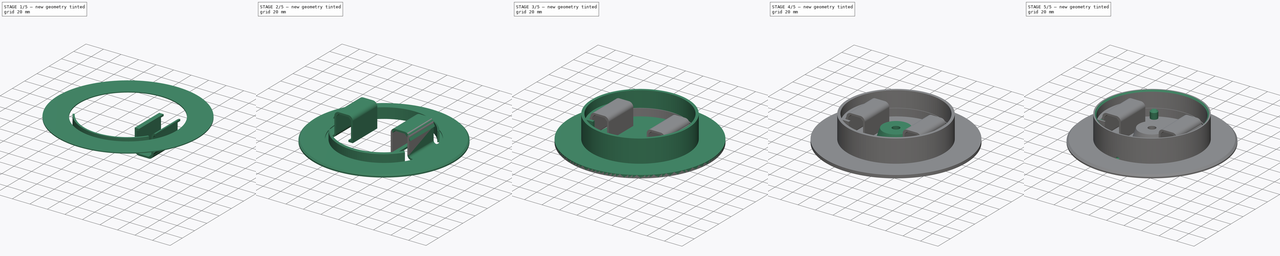
[diagram: build sequence overview — one tinted view per stage of 5, left to right]
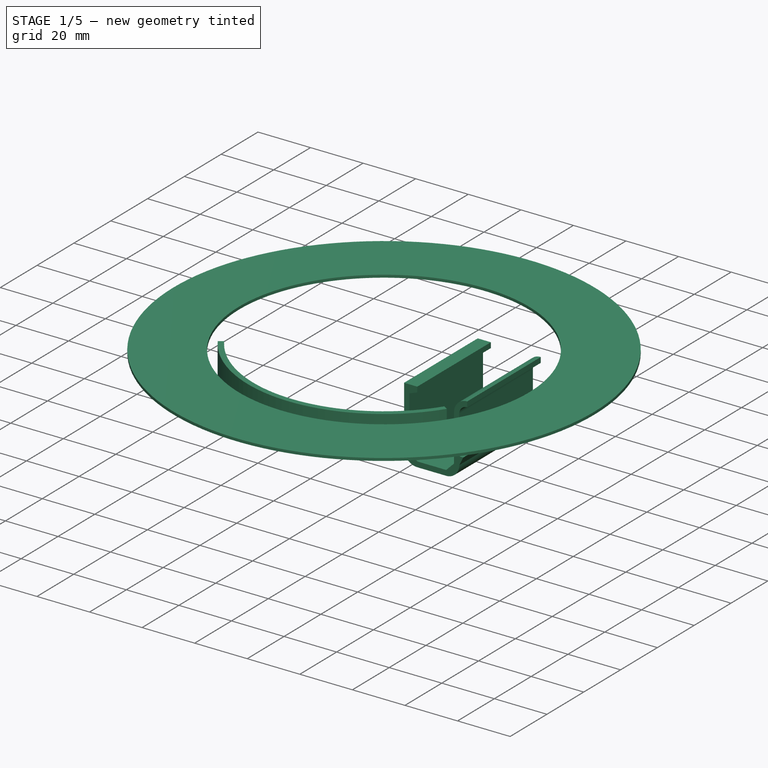
[diagram: stage 1 of 5 — iso view after this stage's code; geometry added in this stage tinted green]
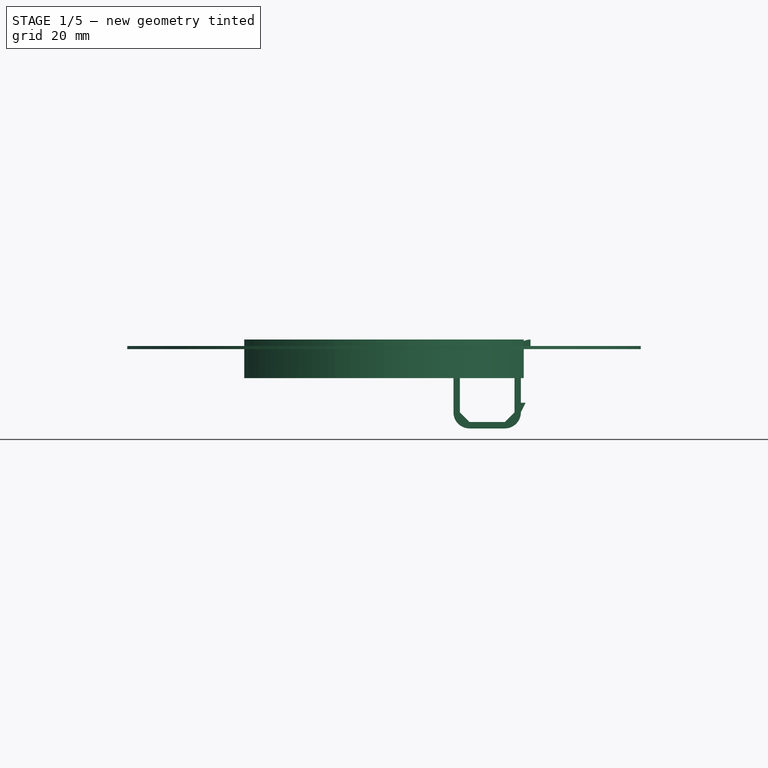
[diagram: stage 1 of 5 — front view after this stage's code; geometry added in this stage tinted green]
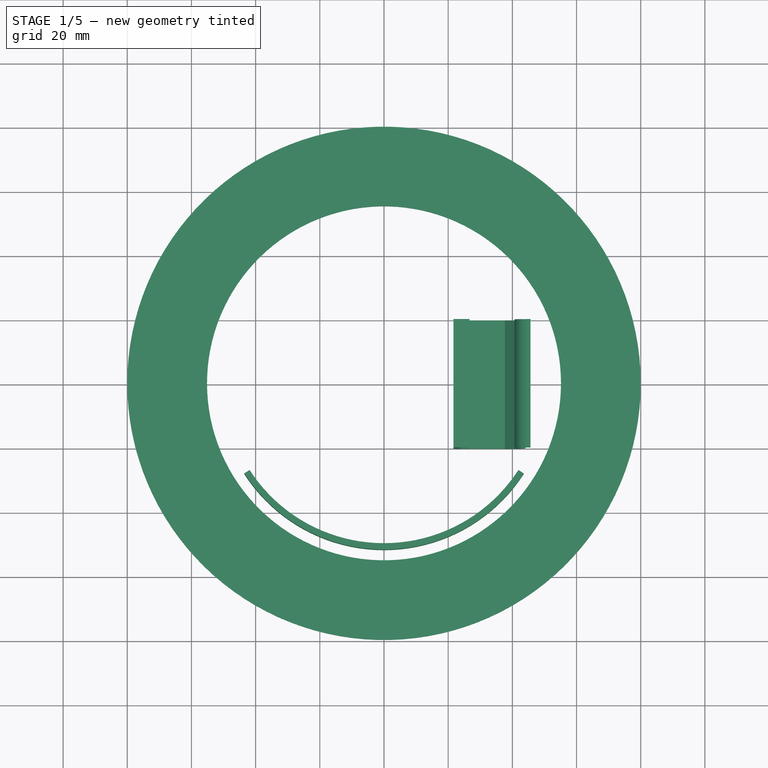
[diagram: stage 1 of 5 — top view after this stage's code; geometry added in this stage tinted green]
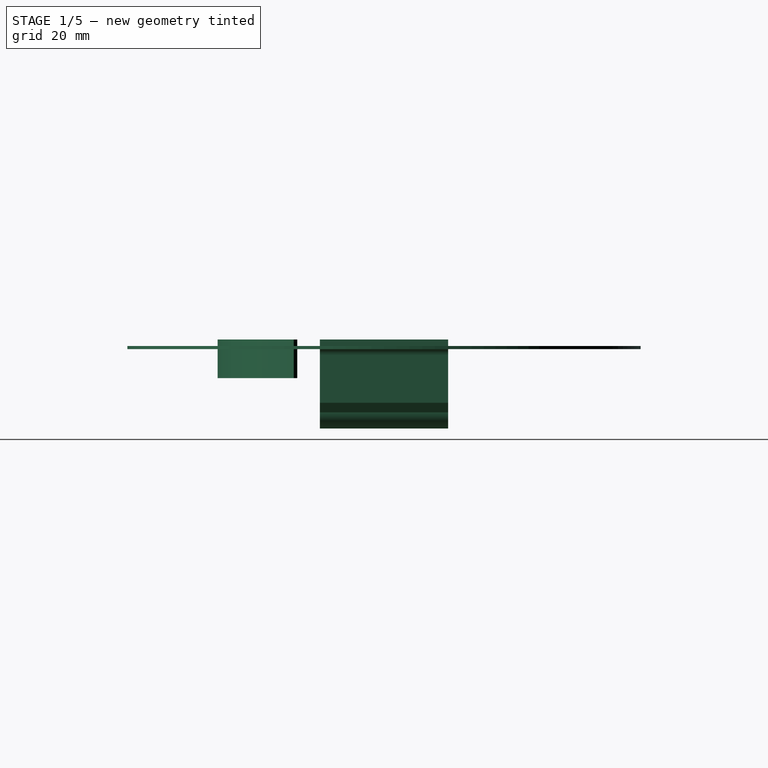
[diagram: stage 1 of 5 — right view after this stage's code; geometry added in this stage tinted green]
FCSTD DOCUMENT  (FreeCAD 0.19R)
Label: sample_spool_winder
License: All rights reserved
LicenseURL: http://en.wikipedia.org/wiki/All_rights_reserved
objects: Sketcher::SketchObject×10, Part::Extrusion×4, PartDesign::Body×3, PartDesign::AdditiveCylinder×3, PartDesign::SubtractiveCylinder×3, Part::Mirroring×2, PartDesign::Mirrored×2, PartDesign::PolarPattern×2, Part::Chamfer×2, Spreadsheet::Sheet×1, Part::MultiFuse×1, PartDesign::Pad×1, PartDesign::SubtractiveBox×1, PartDesign::AdditiveCone×1, Part::FeaturePython×1
note: 45 computed .brp shape members not serialized (recipe doc carries the construction recipe); baked Part::Feature solids carry a one-line shape summary decoded from their .brp

FEATURE [Sketcher::SketchObject] Sketch004  label="DrivePlateInnerBoreBase"
  MapMode = 5
  Support = -> [XY_Plane001]
  expr: Constraints[16] = Sketch002.Constraints[16]
  expr: Constraints[8] = Sketch002.Constraints[8]
  expr: Constraints[7] = Sketch002.Constraints[7]
  sketch-geometry (8):
    g0: ArcOfCircle [constr] CenterX=2e-16 CenterY=7.5 CenterZ=0 NormalX=0 NormalY=0 NormalZ=1 AngleXU=0 Radius=25 StartAngle=1e-16 EndAngle=3.14159
    g1: ArcOfCircle [constr] CenterX=-2e-16 CenterY=-7.5 CenterZ=0 NormalX=0 NormalY=0 NormalZ=1 AngleXU=0 Radius=25 StartAngle=3.14159 EndAngle=6.28319
    g2: LineSegment [constr] StartX=-25 StartY=7.5 StartZ=0 EndX=-25 EndY=-7.5 EndZ=0
    g3: LineSegment [constr] StartX=25 StartY=7.5 StartZ=0 EndX=25 EndY=-7.5 EndZ=0
    g4: ArcOfCircle CenterX=-2e-16 CenterY=7.5 CenterZ=0 NormalX=0 NormalY=0 NormalZ=1 AngleXU=0 Radius=28.5 StartAngle=1e-16 EndAngle=3.14159
    g5: ArcOfCircle CenterX=2e-16 CenterY=-7.5 CenterZ=0 NormalX=0 NormalY=0 NormalZ=1 AngleXU=0 Radius=28.5 StartAngle=3.14159 EndAngle=6.28319
    g6: LineSegment StartX=-28.5 StartY=7.5 StartZ=0 EndX=-28.5 EndY=-7.5 EndZ=0
    g7: LineSegment StartX=28.5 StartY=7.5 StartZ=0 EndX=28.5 EndY=-7.5 EndZ=0
  constraints (18):
    c: Tangent(g0,g3) = 1.5708
    c: Tangent(g0,g2) = -1.5708
    c: Tangent(g2,g1) = -1.5708
    c: Tangent(g3,g1) = 1.5708
    c: Vertical(g2)
    c: Equal(g0,g1)
    c: Symmetric(g1,g0,g-1)
    c: DistanceX(g0,g0) = 50
    c: DistanceY(g-1,g0) = 7.5
    c: Tangent(g4,g7) = 1.5708
    c: Tangent(g4,g6) = -1.5708
    c: Tangent(g6,g5) = -1.5708
    c: Tangent(g7,g5) = 1.5708
    c: Vertical(g6)
    c: Equal(g4,g5)
    c: Symmetric(g5,g4,g-1)
    c: DistanceX(g0,g4) = 3.5
    c: Horizontal(g4,g0)
FEATURE [Sketcher::SketchObject] Sketch005  label="clipsi"
  MapMode = 5
  Placement = pos=(0,0,0) rot=(1,0,0;1.5708rad)
  Support = -> [XZ_Plane002]
  expr: Constraints[41] = <<par>>.ThDrvPlate + <<par>>.ThFrPlate + <<par>>.WiWind
  expr: Constraints[44] = <<par>>.ThDrvPlate + <<par>>.Tol2
  expr: Constraints[35] = 20 + 1.5 + <<par>>.Tol1
  sketch-geometry (18):
    g0: LineSegment StartX=-37.65 StartY=3.8 StartZ=0 EndX=-26.65 EndY=3.8 EndZ=0
    g1: ArcOfCircle CenterX=-26.65 CenterY=8.8 CenterZ=0 NormalX=0 NormalY=0 NormalZ=1 AngleXU=0 Radius=5 StartAngle=4.71239 EndAngle=6.28319
    g2: LineSegment StartX=-21.65 StartY=8.8 StartZ=0 EndX=-21.65 EndY=31.5 EndZ=0
    g3: LineSegment StartX=-23.65 StartY=28.4081 StartZ=0 EndX=-23.65 EndY=8.8 EndZ=0
    g4: LineSegment StartX=-37.65 StartY=5.8 StartZ=0 EndX=-26.65 EndY=5.8 EndZ=0
    g5: LineSegment StartX=-26.65 StartY=31.5 StartZ=0 EndX=-21.65 EndY=31.5 EndZ=0
    g6: LineSegment StartX=-23.65 StartY=8.8 StartZ=0 EndX=-26.65 EndY=5.8 EndZ=0
    g7: LineSegment StartX=-37.65 StartY=5.8 StartZ=0 EndX=-40.65 EndY=8.8 EndZ=0
    g8: LineSegment StartX=-40.65 StartY=8.8 StartZ=0 EndX=-40.65 EndY=26.5 EndZ=0
    g9: LineSegment StartX=-44.15 StartY=11.8 StartZ=0 EndX=-42.65 EndY=11.8 EndZ=0
    g10: LineSegment StartX=-42.65 StartY=11.8 StartZ=0 EndX=-42.65 EndY=26.5 EndZ=0
    g11: ArcOfCircle CenterX=-37.65 CenterY=8.8 CenterZ=0 NormalX=0 NormalY=0 NormalZ=1 AngleXU=0 Radius=5 StartAngle=3.14159 EndAngle=4.71239
    g12: LineSegment StartX=-44.15 StartY=11.8 StartZ=0 EndX=-42.65 EndY=8.8 EndZ=0
    g13: ArcOfCircle CenterX=-45.65 CenterY=26.5 CenterZ=0 NormalX=0 NormalY=0 NormalZ=1 AngleXU=0 Radius=5 StartAngle=0 EndAngle=1.5708
    g14: ArcOfCircle CenterX=-45.65 CenterY=26.5 CenterZ=0 NormalX=0 NormalY=0 NormalZ=1 AngleXU=0 Radius=3 StartAngle=1e-16 EndAngle=1.5708
    g15: LineSegment StartX=-45.65 StartY=29.5 StartZ=0 EndX=-45.65 EndY=31.5 EndZ=0
    g16: LineSegment StartX=-26.65 StartY=31.5 StartZ=0 EndX=-26.65 EndY=29.5 EndZ=0
    g17: LineSegment StartX=-26.65 StartY=29.5 StartZ=0 EndX=-23.65 EndY=28.4081 EndZ=0
  constraints (57):
    c: Horizontal(g0)
    c: Coincident(g1,g0)
    c: Vertical(g0,g1)
    c: Horizontal(g1,g1)
    c: Radius(g1) = 5
    c: Coincident(g2,g1)
    c: Vertical(g2)
    c: Vertical(g3)
    c: Horizontal(g4)
    c: Horizontal(g3,g1)
    c: Vertical(g4,g0)
    c: DistanceX(g3,g1) = 2
    c: Coincident(g5,g2)
    c: Horizontal(g5)
    c: Coincident(g6,g3)
    c: Coincident(g6,g4)
    c: DistanceY(g0,g4) = 2
    c: Coincident(g7,g4)
    c: Coincident(g8,g7)
    c: Vertical(g8)
    c: Horizontal(g9)
    c: Coincident(g10,g9)
    c: Vertical(g10)
    c: DistanceX(g9,g9) = 1.5
    c: Coincident(g11,g0)
    c: Vertical(g4,g0)
    c: Horizontal(g7,g11)
    c: Horizontal(g11,g11)
    c: Vertical(g4,g11)
    c: Vertical(g9,g11)
    c: Coincident(g12,g9)
    c: Coincident(g11,g12)
    c: DistanceX(g9,g7) = 2
    c: DistanceY(g7,g9) = 3
    c: Equal(g11,g1)
    c: DistanceX(g2,g-1) = 21.65
    c: Coincident(g13,g8)
    c: Equal(g13,g1)
    c: Vertical(g13,g13)
    c: Horizontal(g13,g13)
    c: Horizontal(g10,g8)
    c: DistanceY(g-1,g2) = 31.5
    c: Coincident(g14,g10)
    c: Vertical(g14,g14)
    c: DistanceY(g-1,g0) = 3.8
    c: Coincident(g13,g14)
    c: Coincident(g15,g13)
    c: Coincident(g15,g14)
    c: DistanceX(g14,g-1) = 45.65
    c: Horizontal(g13,g5)
    c: Coincident(g5,g16)
    c: Vertical(g16)
    c: Coincident(g16,g17)
    c: Coincident(g17,g3)
    c: DistanceY(g16,g5) = 2
    c: Angle(g17) = -0.349066
    c: DistanceX(g5,g5) = 5
FEATURE [Part::Extrusion] Extrude
  Base = -> Sketch005
  Dir = (0,-1,-2e-16)
  DirMode = 2
  FaceMakerClass = Part::FaceMakerBullseye
  LengthFwd = 40
  LengthRev = 0
  Solid = true
  Symmetric = true
FEATURE [Sketcher::SketchObject] Sketch007  label="front2"
  MapMode = 5
  Support = -> [XY_Plane002]
  expr: Constraints[0] = Sketch006.Constraints[1]
  expr: Constraints[2] = <<par>>.RadIn + <<par>>.Tol1
  sketch-geometry (2):
    g0: Circle CenterX=0 CenterY=0 CenterZ=0 NormalX=0 NormalY=0 NormalZ=1 AngleXU=0 Radius=80
    g1: Circle CenterX=0 CenterY=0 CenterZ=0 NormalX=0 NormalY=0 NormalZ=1 AngleXU=0 Radius=55.15
  constraints (4):
    c: Radius(g0) = 80
    c: Coincident(g1,g0)
    c: Radius(g1) = 55.15
    c: Coincident(g0,g-1)
FEATURE [Part::Extrusion] Extrude002
  Base = -> Sketch007
  Dir = (0,0,1)
  DirMode = 2
  FaceMakerClass = Part::FaceMakerBullseye
  LengthFwd = 0
  LengthRev = 1
  Placement = pos=(0,0,29.5) rot=(0,0,1;0rad)
  Solid = true
  Symmetric = false
  expr: .Placement.Base.z = <<par>>.ThDrvPlate + <<par>>.WiWind + 1
FEATURE [Part::Mirroring] Part__Mirroring  label="Extrude (Mirror #1)"
  Base = (0,0,0)
  Normal = (1,0,0)
  Source = -> Extrude
FEATURE [Sketcher::SketchObject] Sketch008  label="overhang"
  ExternalGeometry = -> [Sketch006]
  MapMode = 5
  Support = -> [XY_Plane002]
  expr: Constraints[1] = <<par>>.RadIn - <<par>>.ThCore - <<par>>.Tol1 - 2
  expr: Constraints[2] = <<par>>.RadIn - <<par>>.ThCore - <<par>>.Tol1
  sketch-geometry (4):
    g0: ArcOfCircle CenterX=0 CenterY=0 CenterZ=0 NormalX=0 NormalY=0 NormalZ=1 AngleXU=0 Radius=49.85 StartAngle=0.57303 EndAngle=2.56856
    g1: ArcOfCircle CenterX=0 CenterY=0 CenterZ=0 NormalX=0 NormalY=0 NormalZ=1 AngleXU=0 Radius=51.85 StartAngle=0.57303 EndAngle=2.56856
    g2: LineSegment StartX=-41.8871 StartY=27.0277 StartZ=0 EndX=-43.5676 EndY=28.112 EndZ=0
    g3: LineSegment StartX=41.8871 StartY=27.0277 StartZ=0 EndX=43.5676 EndY=28.112 EndZ=0
  constraints (12):
    c: Coincident(g0,g-1)
    c: Radius(g0) = 49.85
    c: Radius(g1) = 51.85
    c: Coincident(g1,g0)
    c: Coincident(g2,g0)
    c: Coincident(g2,g1)
    c: Perpendicular(g0,g2)
    c: Coincident(g3,g0)
    c: Coincident(g3,g1)
    c: Perpendicular(g0,g3)
    c: Symmetric(g0,g0,g-2)
    c: DistanceY(g-3,g0) = 5
FEATURE [PartDesign::Body] Body002
  Group = -> [Sketch005,Sketch006,Sketch007,Sketch008]
  Origin = -> Origin002
FEATURE [Part::Extrusion] Extrude003  label="frontplateoverhang"
  Base = -> Sketch008
  Dir = (0,0,1)
  DirMode = 2
  FaceMakerClass = Part::FaceMakerBullseye
  LengthFwd = 2
  LengthRev = 10
  Placement = pos=(0,0,29.5) rot=(0,0,1;0rad)
  Solid = true
  Symmetric = false
  expr: .Placement.Base.z = <<par>>.ThDrvPlate + <<par>>.WiWind + 1
FEATURE [Part::Mirroring] Part__Mirroring001  label="frontplateoverhang (Mirror #2)"
  Base = (0,0,0)
  Normal = (0,1,0)
  Source = -> Extrude003
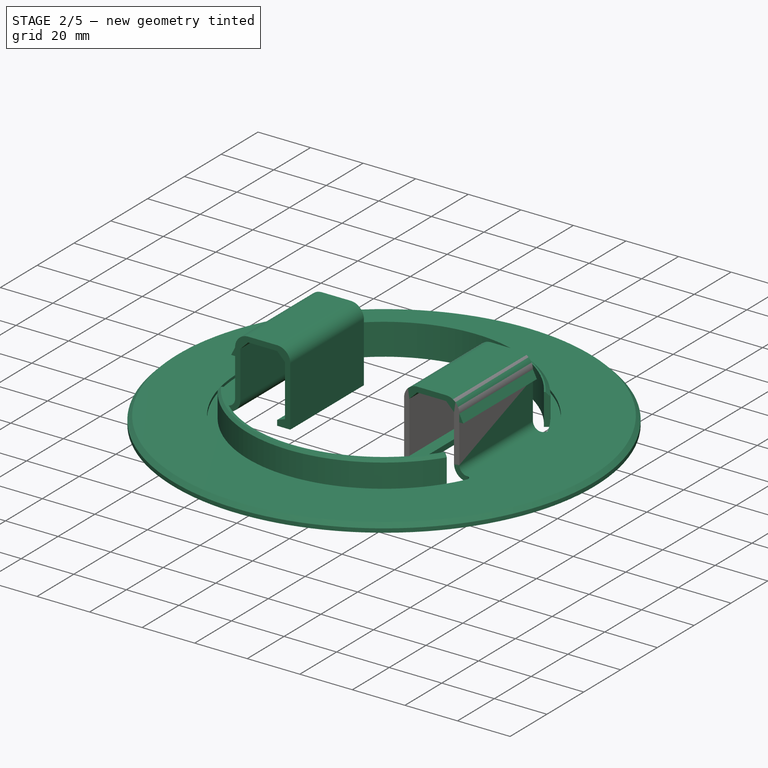
[diagram: stage 2 of 5 — iso view after this stage's code; geometry added in this stage tinted green]
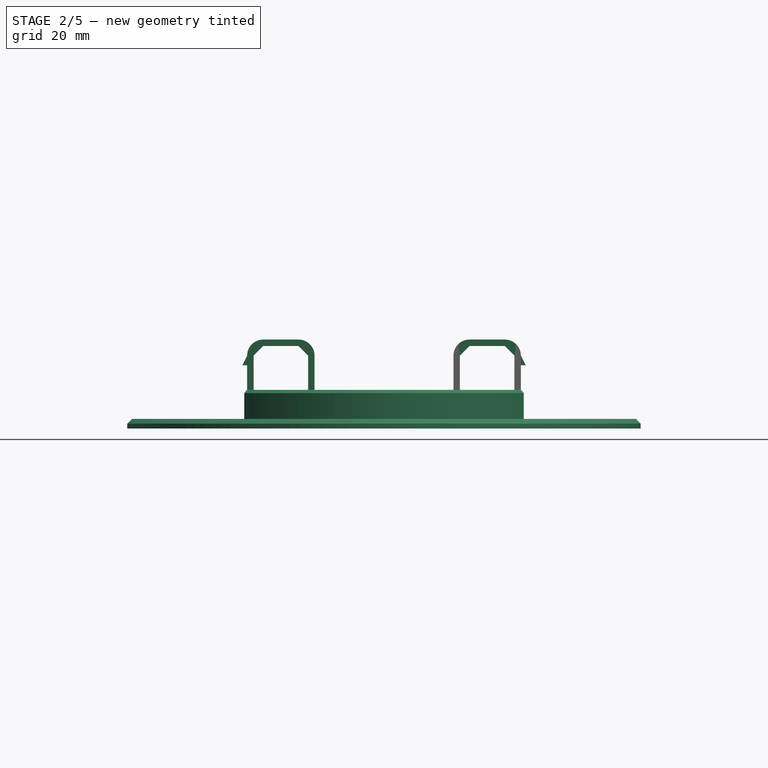
[diagram: stage 2 of 5 — front view after this stage's code; geometry added in this stage tinted green]
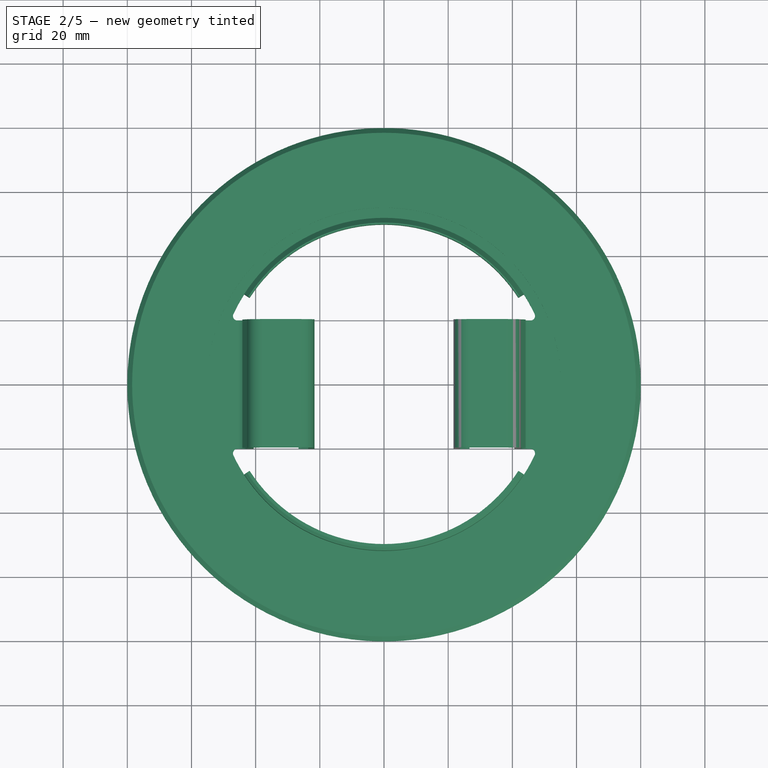
[diagram: stage 2 of 5 — top view after this stage's code; geometry added in this stage tinted green]
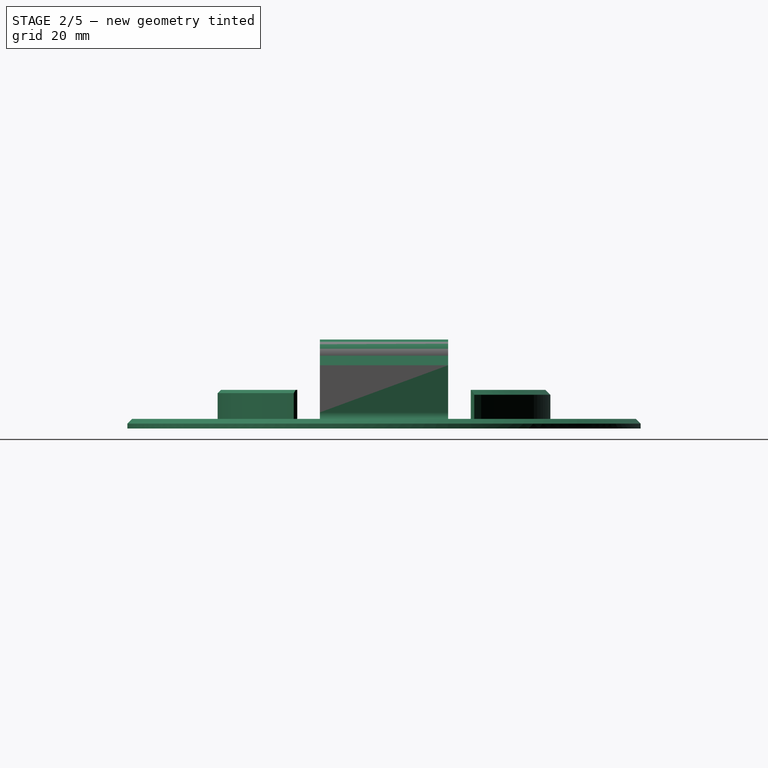
[diagram: stage 2 of 5 — right view after this stage's code; geometry added in this stage tinted green]
FEATURE [Sketcher::SketchObject] Sketch006  label="front1"
  ExternalGeometry = -> [Sketch005]
  MapMode = 5
  Support = -> [XY_Plane002]
  expr: Constraints[15] = <<par>>.RadIn - <<par>>.ThCore - <<par>>.Tol1
  expr: Constraints[1] = <<par>>.RadOut
  sketch-geometry (11):
    g0: LineSegment StartX=-45.65 StartY=-6.8e-15 StartZ=0 EndX=-45.65 EndY=20 EndZ=0
    g1: LineSegment StartX=-45.65 StartY=-6.8e-15 StartZ=0 EndX=-45.65 EndY=-20 EndZ=0
    g2: Circle CenterX=0 CenterY=0 CenterZ=0 NormalX=0 NormalY=0 NormalZ=1 AngleXU=0 Radius=80
    g3: LineSegment StartX=45.65 StartY=0 StartZ=0 EndX=45.65 EndY=20 EndZ=0
    g4: LineSegment StartX=45.65 StartY=0 StartZ=0 EndX=45.65 EndY=-20 EndZ=0
    g5: ArcOfCircle CenterX=-45.65 CenterY=21.4231 CenterZ=0 NormalX=0 NormalY=0 NormalZ=1 AngleXU=0 Radius=1.4231 StartAngle=2.70281 EndAngle=4.71239
    g6: ArcOfCircle CenterX=0 CenterY=0 CenterZ=0 NormalX=0 NormalY=0 NormalZ=1 AngleXU=0 Radius=51.85 StartAngle=0.43878 EndAngle=2.70281
    g7: ArcOfCircle CenterX=45.65 CenterY=21.4231 CenterZ=0 NormalX=0 NormalY=0 NormalZ=1 AngleXU=0 Radius=1.4231 StartAngle=4.71239 EndAngle=6.72198
    g8: ArcOfCircle CenterX=0 CenterY=0 CenterZ=0 NormalX=0 NormalY=0 NormalZ=1 AngleXU=0 Radius=51.85 StartAngle=3.58037 EndAngle=5.84441
    g9: ArcOfCircle CenterX=-45.65 CenterY=-21.4231 CenterZ=0 NormalX=0 NormalY=0 NormalZ=1 AngleXU=0 Radius=1.4231 StartAngle=1.5708 EndAngle=3.58037
    g10: ArcOfCircle CenterX=45.65 CenterY=-21.4231 CenterZ=0 NormalX=0 NormalY=0 NormalZ=1 AngleXU=0 Radius=1.4231 StartAngle=5.84439 EndAngle=7.85398
  constraints (33):
    c: DistanceY(g0,g0) = 20
    c: Radius(g2) = 80
    c: Equal(g1,g0)
    c: Vertical(g1)
    c: Coincident(g2,g-1)
    c: Vertical(g0)
    c: PointOnObject(g3,g-1)
    c: Symmetric(g3,g0,g-2)
    c: Vertical(g3)
    c: Coincident(g4,g3)
    c: Vertical(g4)
    c: Equal(g4,g3)
    c: Coincident(g5,g0)
    c: Vertical(g5,g0)
    c: Coincident(g6,g2)
    c: Radius(g6) = 51.85
    c: Tangent(g5,g6) = -1.5708
    c: Coincident(g7,g6)
    c: Coincident(g7,g3)
    c: Vertical(g7,g3)
    c: Equal(g5,g7)
    c: Coincident(g8,g2)
    c: Equal(g8,g6)
    c: Vertical(g5,g8)
    c: Vertical(g8,g6)
    c: Coincident(g9,g8)
    c: Coincident(g9,g1)
    c: Vertical(g9,g1)
    c: Coincident(g10,g4)
    c: Coincident(g10,g8)
    c: Vertical(g10,g4)
    c: Coincident(g1,g0)
    c: Coincident(g-3,g0)
FEATURE [Part::Extrusion] Extrude001
  Base = -> Sketch006
  Dir = (0,0,1)
  DirMode = 2
  FaceMakerClass = Part::FaceMakerBullseye
  LengthFwd = 2
  LengthRev = 0
  Placement = pos=(0,0,29.5) rot=(0,0,1;0rad)
  Solid = true
  Symmetric = false
  expr: .Placement.Base.z = <<par>>.ThDrvPlate + <<par>>.WiWind + 1
FEATURE [Part::MultiFuse] Fusion
  Shapes = -> [Extrude001,Extrude002,Part__Mirroring,Extrude,Part__Mirroring001,Extrude003]
FEATURE [Part::Chamfer] Chamfer  label="FrontPlate"
  Base = -> Fusion
  Edges = 3 edges: [Edge5 r=1.5,Edge155 r=1,Edge156 r=1.5]
FEATURE [Part::FeaturePython] Clone  label="FrontPlate_reoriented_clone"  # Draft clone (typed FeaturePython)
  AttacherType = Attacher::AttachEngine3D
  Fuse = false
  Objects = -> [Chamfer]
  Placement = pos=(-3.9e-15,0,31.5) rot=(0,1,0;3.14159rad)
  Scale = (1,1,1)
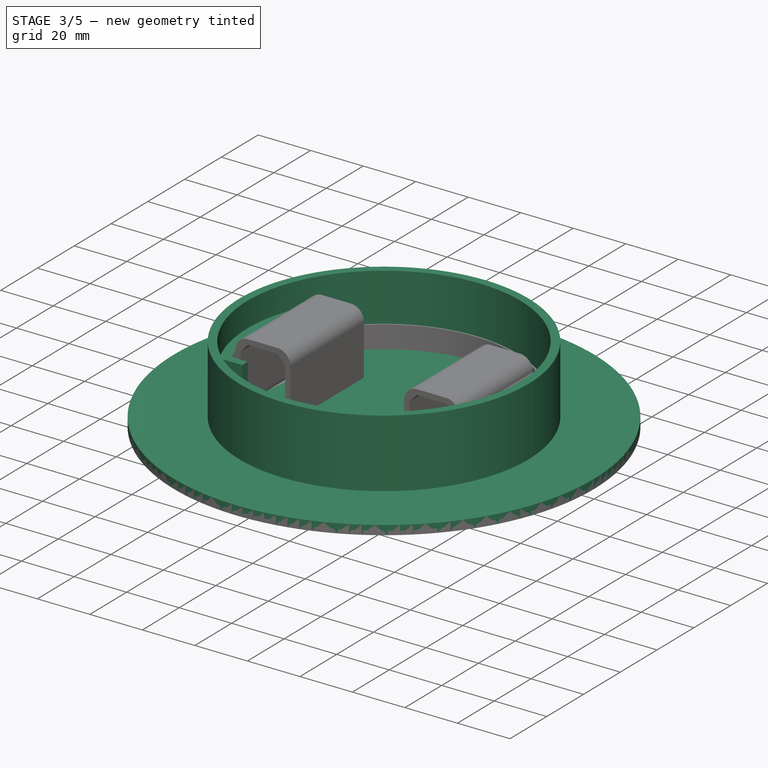
[diagram: stage 3 of 5 — iso view after this stage's code; geometry added in this stage tinted green]
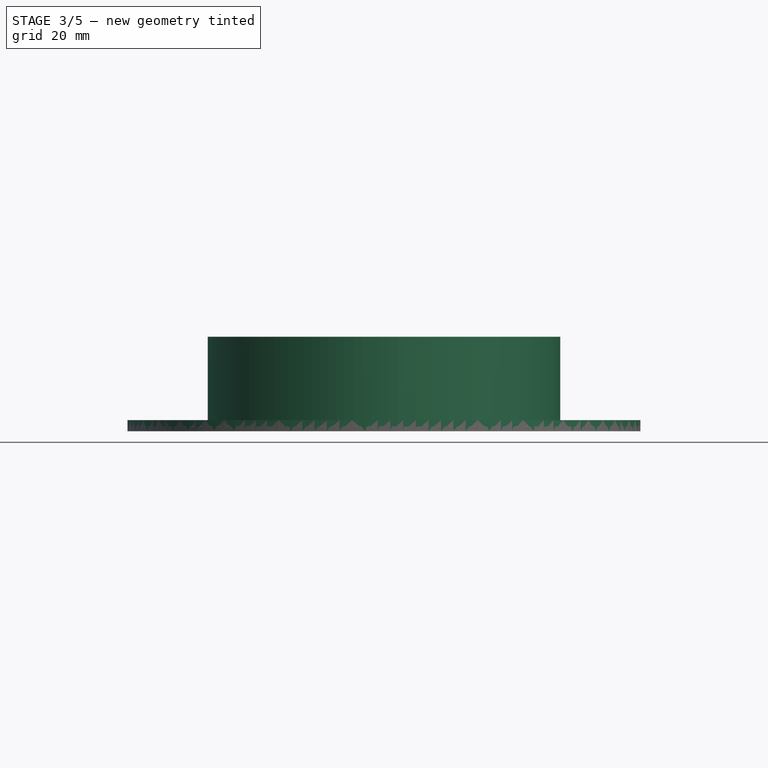
[diagram: stage 3 of 5 — front view after this stage's code; geometry added in this stage tinted green]
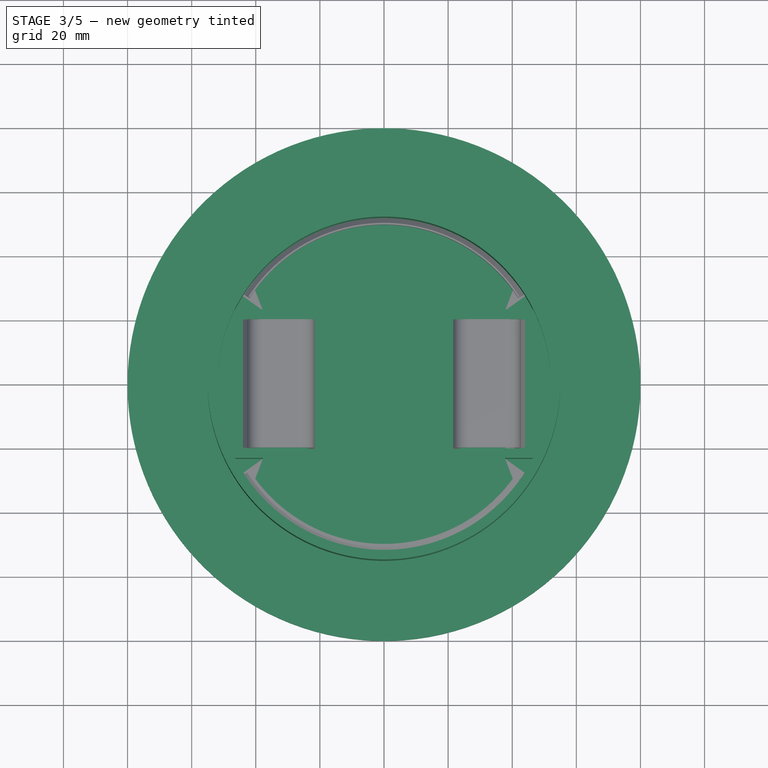
[diagram: stage 3 of 5 — top view after this stage's code; geometry added in this stage tinted green]
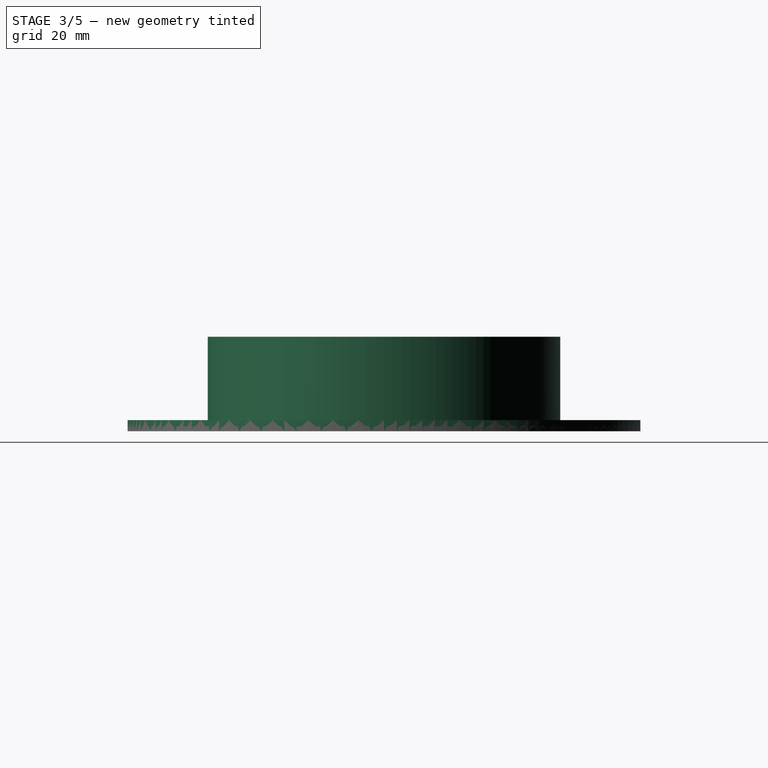
[diagram: stage 3 of 5 — right view after this stage's code; geometry added in this stage tinted green]
FEATURE [Spreadsheet::Sheet] Spreadsheet  label="par"
  cells = C6=InnerRadius; D6=RadIn; E6(RadIn)==110 / 2; G6=110mm Diameter; C7=OuterRadius; D7=RadOut; E7(RadOut)==160 / 2; G7=160mm Außendurchmesser; C8=SnapDistance; D8=DisSnap; E8(DisSnap)=10; G8=MovementBetween Halfes; C9=SingleToletrance; D9=Tol1; E9(Tol1)=0.14999999999999999; C10=DoubleTolerance; D10=Tol2; E10(Tol2)==2 * E9; C12=Greifloch; D12=RadGrLoch; E12(RadGrLoch)==50 / 2; G12=Mindestens 50mm Durchmesser; D14=RadKschOut; E14(RadKschOut)==30 / 2; G14=Karosseriescheibe M8x30; C16=DrivePlateThickness; D16=ThDrvPlate; E16(ThDrvPlate)=3.5; G16=Dicke Antriebsscheibe; C17=FrontPlate Thickness; D17=ThFrPlate; E17(ThFrPlate)=3; C18=WindingWidth; D18=WiWind; E18(WiWind)=25; G18=Breite der Wickelfläche; C20=CoreThickness; D20=ThCore; E20(ThCore)=3
FEATURE [Sketcher::SketchObject] Sketch  label="TotalOuter"
  MapMode = 5
  Support = -> [XY_Plane]
  expr: Constraints[1] = <<par>>.RadOut
  expr: Constraints[3] = <<par>>.RadIn
  expr: Constraints[5] = <<par>>.RadKschOut
  expr: Constraints[7] = <<par>>.RadGrLoch
  expr: Constraints[15] = 2 * <<par>>.RadGrLoch
  sketch-geometry (8):
    g0: Circle CenterX=0 CenterY=0 CenterZ=0 NormalX=0 NormalY=0 NormalZ=1 AngleXU=0 Radius=80
    g1: Circle CenterX=0 CenterY=0 CenterZ=0 NormalX=0 NormalY=0 NormalZ=1 AngleXU=0 Radius=55
    g2: Circle CenterX=0 CenterY=0 CenterZ=0 NormalX=0 NormalY=0 NormalZ=1 AngleXU=0 Radius=15
    g3: Circle CenterX=0 CenterY=0 CenterZ=0 NormalX=0 NormalY=0 NormalZ=1 AngleXU=0 Radius=25
    g4: ArcOfCircle CenterX=4e-16 CenterY=6.82182 CenterZ=0 NormalX=0 NormalY=0 NormalZ=1 AngleXU=0 Radius=25 StartAngle=1e-16 EndAngle=3.14159
    g5: ArcOfCircle CenterX=-4e-16 CenterY=-6.82182 CenterZ=0 NormalX=0 NormalY=0 NormalZ=1 AngleXU=0 Radius=25 StartAngle=3.14159 EndAngle=6.28319
    g6: LineSegment StartX=-25 StartY=6.82182 StartZ=0 EndX=-25 EndY=-6.82182 EndZ=0
    g7: LineSegment StartX=25 StartY=6.82182 StartZ=0 EndX=25 EndY=-6.82182 EndZ=0
  constraints (16):
    c: Coincident(g0,g-1)
    c: Radius(g0) = 80
    c: Coincident(g1,g0)
    c: Radius(g1) = 55
    c: Coincident(g2,g0)
    c: Radius(g2) = 15
    c: Coincident(g3,g0)
    c: Radius(g3) = 25
    c: Tangent(g4,g7) = 1.5708
    c: Tangent(g4,g6) = -1.5708
    c: Tangent(g6,g5) = -1.5708
    c: Tangent(g7,g5) = 1.5708
    c: Vertical(g6)
    c: Equal(g4,g5)
    c: Symmetric(g4,g5,g0)
    c: DistanceX(g4,g4) = 50
FEATURE [Sketcher::SketchObject] Sketch001  label="HalfMoonPlate"
  MapMode = 5
  Support = -> [XY_Plane]
  expr: Constraints[1] = <<par>>.RadIn
  expr: Constraints[3] = <<par>>.DisSnap / 2
  expr: Constraints[10] = 10 + <<par>>.Tol2
  sketch-geometry (6):
    g0: ArcOfCircle CenterX=0 CenterY=0 CenterZ=0 NormalX=0 NormalY=0 NormalZ=1 AngleXU=0 Radius=55 StartAngle=0.0910348 EndAngle=3.05056
    g1: ArcOfCircle CenterX=-29.8807 CenterY=29.2887 CenterZ=0 NormalX=0 NormalY=0 NormalZ=1 AngleXU=0 Radius=5.15 StartAngle=0 EndAngle=3.14159
    g2: ArcOfCircle CenterX=-29.8807 CenterY=24.3879 CenterZ=0 NormalX=0 NormalY=0 NormalZ=1 AngleXU=0 Radius=5.15 StartAngle=3.14159 EndAngle=6.28319
    g3: LineSegment StartX=-35.0307 StartY=29.2887 StartZ=0 EndX=-35.0307 EndY=24.3879 EndZ=0
    g4: LineSegment StartX=-24.7307 StartY=29.2887 StartZ=0 EndX=-24.7307 EndY=24.3879 EndZ=0
    g5: Circle [constr] CenterX=0 CenterY=0 CenterZ=0 NormalX=0 NormalY=0 NormalZ=1 AngleXU=0 Radius=25
  constraints (13):
    c: Coincident(g0,g-1)
    c: Radius(g0) = 55
    c: Horizontal(g0,g0)
    c: DistanceY(g0,g0) = 5
    c: Tangent(g1,g4) = 1.5708
    c: Tangent(g1,g3) = -1.5708
    c: Tangent(g3,g2) = -1.5708
    c: Tangent(g4,g2) = 1.5708
    c: Vertical(g3)
    c: Equal(g1,g2)
    c: DistanceX(g1,g1) = 10.3
    c: Coincident(g5,g0)
    c: Radius(g5) = 25
FEATURE [PartDesign::Body] Body
  Group = -> [Sketch,Sketch001]
  Origin = -> Origin
FEATURE [Sketcher::SketchObject] Sketch002  label="DrivePlateInnerBore"
  MapMode = 5
  Support = -> [XY_Plane001]
  expr: Constraints[7] = 2 * <<par>>.RadGrLoch
  expr: Constraints[8] = 15 / 2
  sketch-geometry (8):
    g0: ArcOfCircle CenterX=2e-16 CenterY=7.5 CenterZ=0 NormalX=0 NormalY=0 NormalZ=1 AngleXU=0 Radius=25 StartAngle=1e-16 EndAngle=3.14159
    g1: ArcOfCircle CenterX=-2e-16 CenterY=-7.5 CenterZ=0 NormalX=0 NormalY=0 NormalZ=1 AngleXU=0 Radius=25 StartAngle=3.14159 EndAngle=6.28319
    g2: LineSegment StartX=-25 StartY=7.5 StartZ=0 EndX=-25 EndY=-7.5 EndZ=0
    g3: LineSegment StartX=25 StartY=7.5 StartZ=0 EndX=25 EndY=-7.5 EndZ=0
    g4: ArcOfCircle CenterX=-2e-16 CenterY=7.5 CenterZ=0 NormalX=0 NormalY=0 NormalZ=1 AngleXU=0 Radius=28.5 StartAngle=1e-16 EndAngle=3.14159
    g5: ArcOfCircle CenterX=2e-16 CenterY=-7.5 CenterZ=0 NormalX=0 NormalY=0 NormalZ=1 AngleXU=0 Radius=28.5 StartAngle=3.14159 EndAngle=6.28319
    g6: LineSegment StartX=-28.5 StartY=7.5 StartZ=0 EndX=-28.5 EndY=-7.5 EndZ=0
    g7: LineSegment StartX=28.5 StartY=7.5 StartZ=0 EndX=28.5 EndY=-7.5 EndZ=0
  constraints (18):
    c: Tangent(g0,g3) = 1.5708
    c: Tangent(g0,g2) = -1.5708
    c: Tangent(g2,g1) = -1.5708
    c: Tangent(g3,g1) = 1.5708
    c: Vertical(g2)
    c: Equal(g0,g1)
    c: Symmetric(g1,g0,g-1)
    c: DistanceX(g0,g0) = 50
    c: DistanceY(g-1,g0) = 7.5
    c: Tangent(g4,g7) = 1.5708
    c: Tangent(g4,g6) = -1.5708
    c: Tangent(g6,g5) = -1.5708
    c: Tangent(g7,g5) = 1.5708
    c: Vertical(g6)
    c: Equal(g4,g5)
    c: Symmetric(g5,g4,g-1)
    c: DistanceX(g0,g4) = 3.5
    c: Horizontal(g4,g0)
FEATURE [Sketcher::SketchObject] Sketch003
  ExternalGeometry = -> [Sketch002]
  MapMode = 5
  Support = -> [XY_Plane]
  expr: Constraints[8] = <<par>>.Tol1
  expr: Constraints[17] = <<par>>.DisSnap / 2
  sketch-geometry (8):
    g0: ArcOfCircle CenterX=-4e-16 CenterY=7.5 CenterZ=0 NormalX=0 NormalY=0 NormalZ=1 AngleXU=0 Radius=28.65 StartAngle=1e-16 EndAngle=3.14159
    g1: ArcOfCircle CenterX=4e-16 CenterY=-7.5 CenterZ=0 NormalX=0 NormalY=0 NormalZ=1 AngleXU=0 Radius=28.65 StartAngle=3.14159 EndAngle=6.28319
    g2: LineSegment StartX=-28.65 StartY=7.5 StartZ=0 EndX=-28.65 EndY=-7.5 EndZ=0
    g3: LineSegment StartX=28.65 StartY=7.5 StartZ=0 EndX=28.65 EndY=-7.5 EndZ=0
    g4: ArcOfCircle CenterX=-2e-15 CenterY=7.5 CenterZ=0 NormalX=0 NormalY=0 NormalZ=1 AngleXU=0 Radius=33.65 StartAngle=1e-16 EndAngle=3.14159
    g5: ArcOfCircle CenterX=2e-15 CenterY=-7.5 CenterZ=0 NormalX=0 NormalY=0 NormalZ=1 AngleXU=0 Radius=33.65 StartAngle=3.14159 EndAngle=6.28319
    g6: LineSegment StartX=-33.65 StartY=7.5 StartZ=0 EndX=-33.65 EndY=-7.5 EndZ=0
    g7: LineSegment StartX=33.65 StartY=7.5 StartZ=0 EndX=33.65 EndY=-7.5 EndZ=0
  constraints (18):
    c: Tangent(g0,g3) = 1.5708
    c: Tangent(g0,g2) = -1.5708
    c: Tangent(g2,g1) = -1.5708
    c: Tangent(g3,g1) = 1.5708
    c: Vertical(g2)
    c: Equal(g0,g1)
    c: Symmetric(g1,g0,g-1)
    c: Horizontal(g0,g-3)
    c: DistanceX(g0,g-3) = 0.15
    c: Tangent(g4,g7) = 1.5708
    c: Tangent(g4,g6) = -1.5708
    c: Tangent(g6,g5) = -1.5708
    c: Tangent(g7,g5) = 1.5708
    c: Vertical(g6)
    c: Equal(g4,g5)
    c: Symmetric(g4,g5,g-1)
    c: Horizontal(g4,g0)
    c: DistanceX(g4,g0) = 5
FEATURE [PartDesign::AdditiveCylinder] Cylinder  label="DrivePlateBase"
  Angle = 360
  AttacherType = Attacher::AttachEngine3D
  Height = 3.5
  Radius = 80
  expr: Radius = <<par>>.RadOut
  expr: Height = <<par>>.ThDrvPlate
FEATURE [PartDesign::AdditiveCylinder] Cylinder001  label="WindingOuter"
  Angle = 360
  AttacherType = Attacher::AttachEngine3D
  BaseFeature = -> Cylinder
  Height = 29.5
  Radius = 55
  expr: Height = <<par>>.WiWind + <<par>>.ThDrvPlate + 1
  expr: Radius = <<par>>.RadIn
FEATURE [PartDesign::SubtractiveCylinder] Cylinder002
  Angle = 360
  AttacherType = Attacher::AttachEngine3D
  AttachmentOffset = pos=(0,0,3.5) rot=(0,0,1;0rad)
  BaseFeature = -> Cylinder001
  Height = 26
  MapMode = 5
  Placement = pos=(0,0,3.5) rot=(0,0,1;0rad)
  Radius = 52
  Support = -> [XY_Plane001]
  expr: Radius = <<par>>.RadIn - 3
  expr: Height = <<par>>.WiWind + 1
  expr: .AttachmentOffset.Base.z = <<par>>.ThDrvPlate
FEATURE [Sketcher::SketchObject] Sketch009
  MapMode = 5
  Support = -> [XY_Plane001]
  expr: Constraints[4] = <<par>>.RadIn - <<par>>.ThCore
  expr: Constraints[0] = 42.649999999999999 + <<par>>.Tol1
  expr: Constraints[1] = 20 + <<par>>.Tol1
  sketch-geometry (8):
    g0: LineSegment StartX=-42.8 StartY=20.15 StartZ=0 EndX=-42.8 EndY=-20.15 EndZ=0
    g1: ArcOfCircle CenterX=0 CenterY=0 CenterZ=0 NormalX=0 NormalY=0 NormalZ=1 AngleXU=0 Radius=52 StartAngle=2.6802 EndAngle=3.60298
    g2: LineSegment StartX=-42.8 StartY=20.15 StartZ=0 EndX=-37.8 EndY=20.15 EndZ=0
    g3: LineSegment StartX=-37.8 StartY=20.15 StartZ=0 EndX=-37.8 EndY=23.15 EndZ=0
    g4: LineSegment StartX=-37.8 StartY=23.15 StartZ=0 EndX=-46.5626 EndY=23.15 EndZ=0
    g5: LineSegment StartX=-42.8 StartY=-20.15 StartZ=0 EndX=-37.8 EndY=-20.15 EndZ=0
    g6: LineSegment StartX=-37.8 StartY=-20.15 StartZ=0 EndX=-37.8 EndY=-23.15 EndZ=0
    g7: LineSegment StartX=-37.8 StartY=-23.15 StartZ=0 EndX=-46.5626 EndY=-23.15 EndZ=0
  constraints (21):
    c: DistanceX(g0,g-1) = 42.8
    c: DistanceY(g-1,g0) = 20.15
    c: Symmetric(g0,g0,g-1)
    c: Coincident(g1,g-1)
    c: Radius(g1) = 52
    c: Coincident(g2,g0)
    c: Coincident(g3,g2)
    c: Vertical(g3)
    c: Coincident(g4,g3)
    c: Coincident(g4,g1)
    c: Horizontal(g4)
    c: DistanceY(g3,g3) = 3
    c: Coincident(g0,g5)
    c: Coincident(g5,g6)
    c: Coincident(g6,g7)
    c: Coincident(g7,g1)
    c: Symmetric(g5,g2,g-1)
    c: Symmetric(g6,g3,g-1)
    c: Symmetric(g1,g1,g-1)
    c: Horizontal(g5)
    c: DistanceX(g2,g2) = 5
FEATURE [PartDesign::Pad] Pad  label="DrivePlateClipInHolder"
  BaseFeature = -> Cylinder002
  Length = 20
  Length2 = 100
  Placement = pos=(0,0,3.5) rot=(0,0,1;0rad)
  Profile = -> Sketch009
  Type = 0
FEATURE [PartDesign::Mirrored] Mirrored
  BaseFeature = -> Pad
  MirrorPlane = -> YZ_Plane001
  Originals = -> [Pad]
  Placement = pos=(0,0,3.5) rot=(0,0,1;0rad)
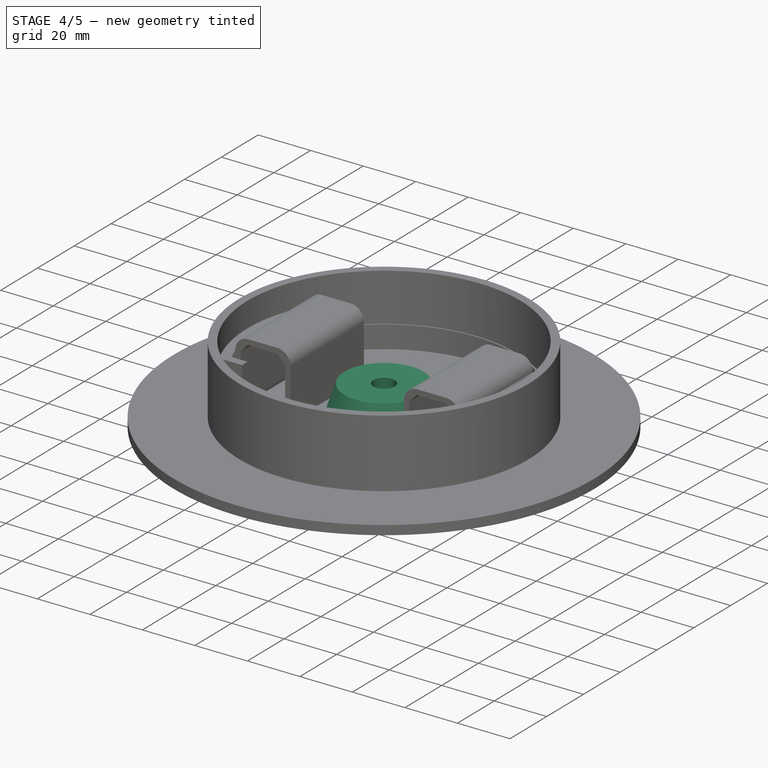
[diagram: stage 4 of 5 — iso view after this stage's code; geometry added in this stage tinted green]
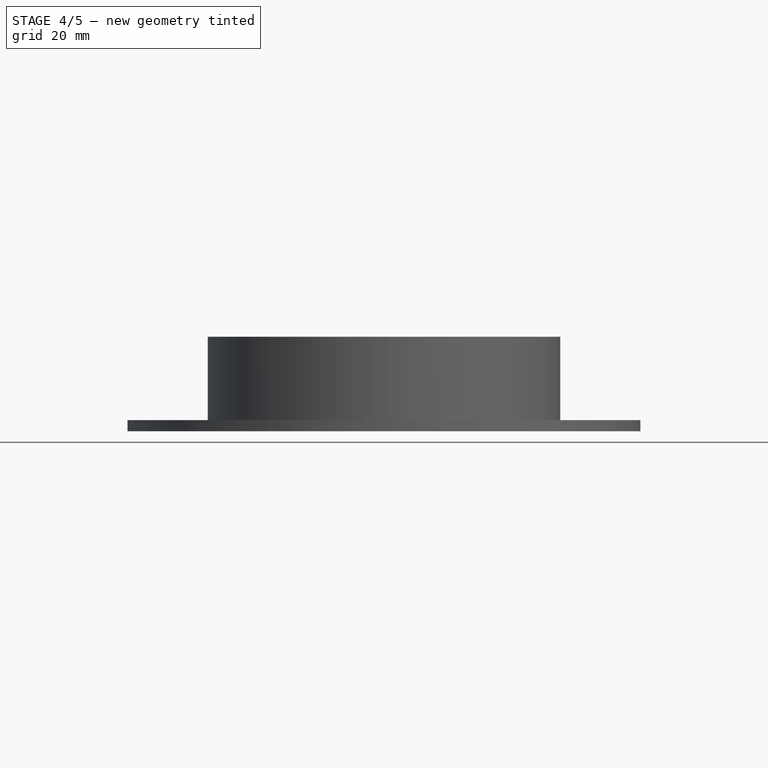
[diagram: stage 4 of 5 — front view after this stage's code; geometry added in this stage tinted green]
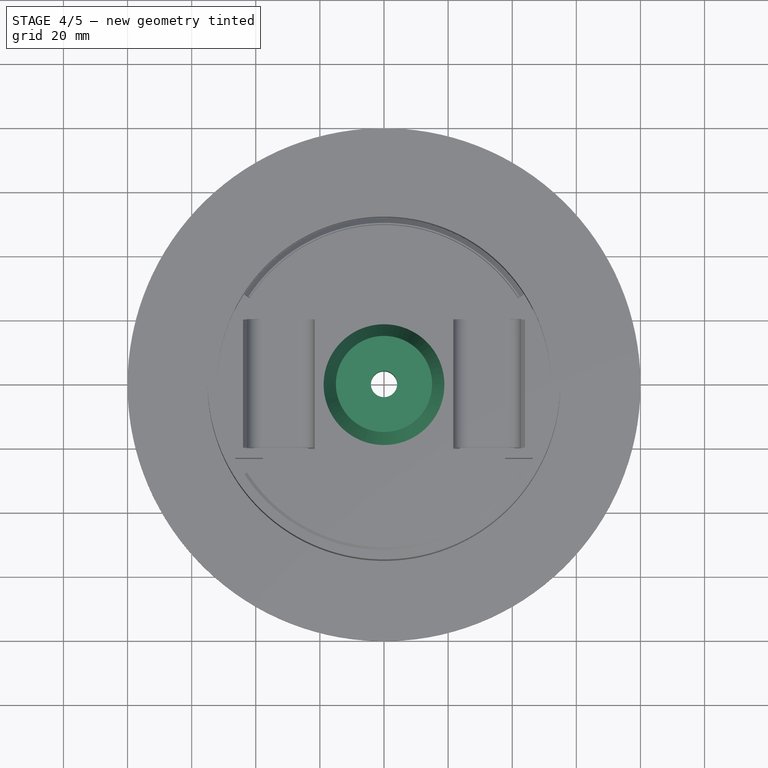
[diagram: stage 4 of 5 — top view after this stage's code; geometry added in this stage tinted green]
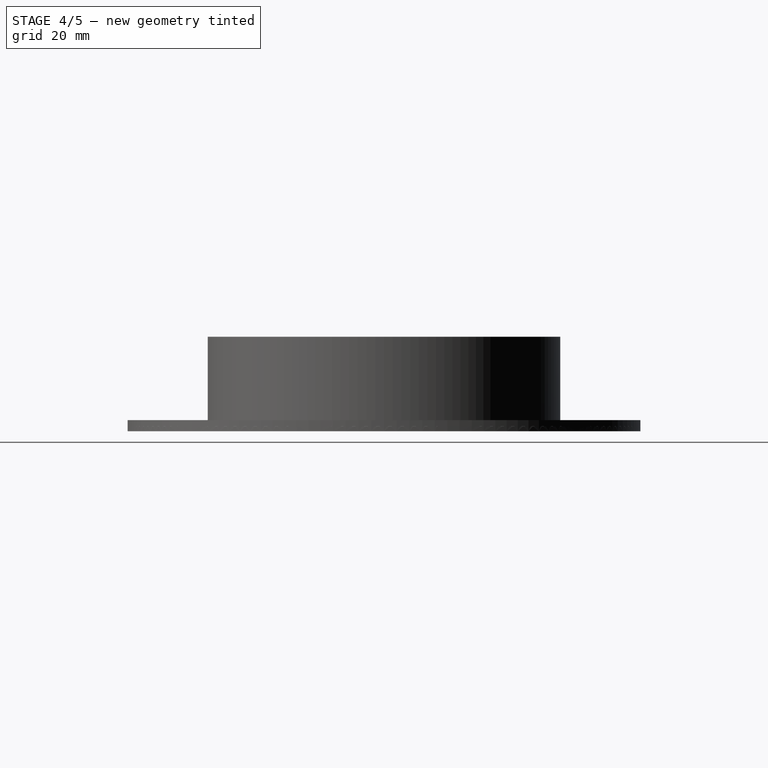
[diagram: stage 4 of 5 — right view after this stage's code; geometry added in this stage tinted green]
FEATURE [PartDesign::SubtractiveBox] Box
  AttacherType = Attacher::AttachEngine3D
  AttachmentOffset = pos=(-45.8,-20.15,6.95) rot=(0,0,1;0rad)
  BaseFeature = -> Mirrored
  Height = 5
  Length = 3
  MapMode = 5
  Placement = pos=(-45.8,-20.15,6.95) rot=(0,0,1;0rad)
  Support = -> [XY_Plane001]
  Width = 40.3
FEATURE [PartDesign::Mirrored] Mirrored001
  BaseFeature = -> Box
  MirrorPlane = -> YZ_Plane001
  Originals = -> [Box]
  Placement = pos=(-45.8,-20.15,6.95) rot=(0,0,1;0rad)
FEATURE [PartDesign::AdditiveCone] Cone
  Angle = 360
  AttacherType = Attacher::AttachEngine3D
  BaseFeature = -> Mirrored001
  Height = 15
  Radius1 = 20
  Radius2 = 15
FEATURE [PartDesign::SubtractiveCylinder] Cylinder003
  Angle = 360
  AttacherType = Attacher::AttachEngine3D
  BaseFeature = -> Cone
  Height = 15
  Radius = 4.1
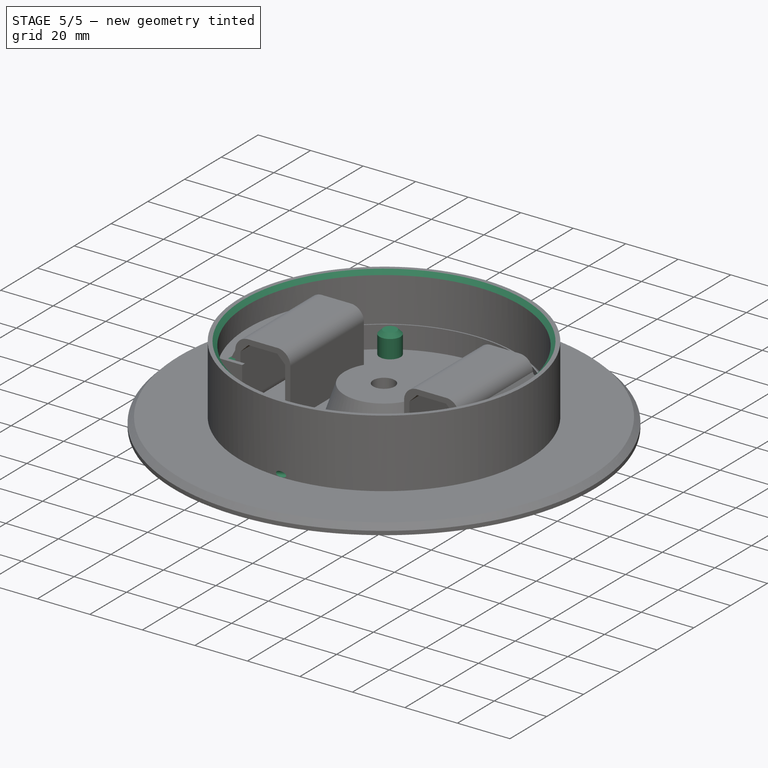
[diagram: stage 5 of 5 — iso view after this stage's code; geometry added in this stage tinted green]
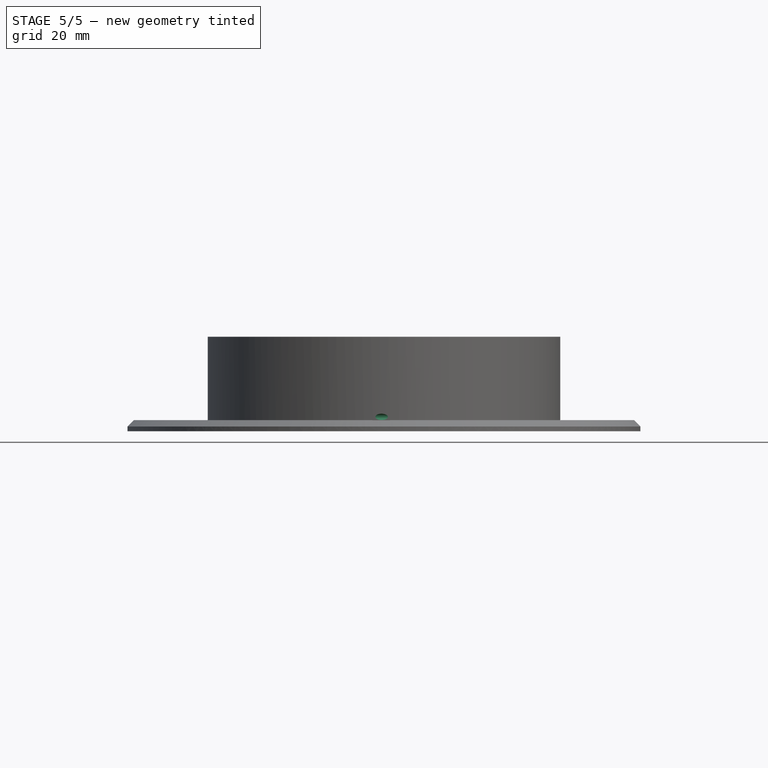
[diagram: stage 5 of 5 — front view after this stage's code; geometry added in this stage tinted green]
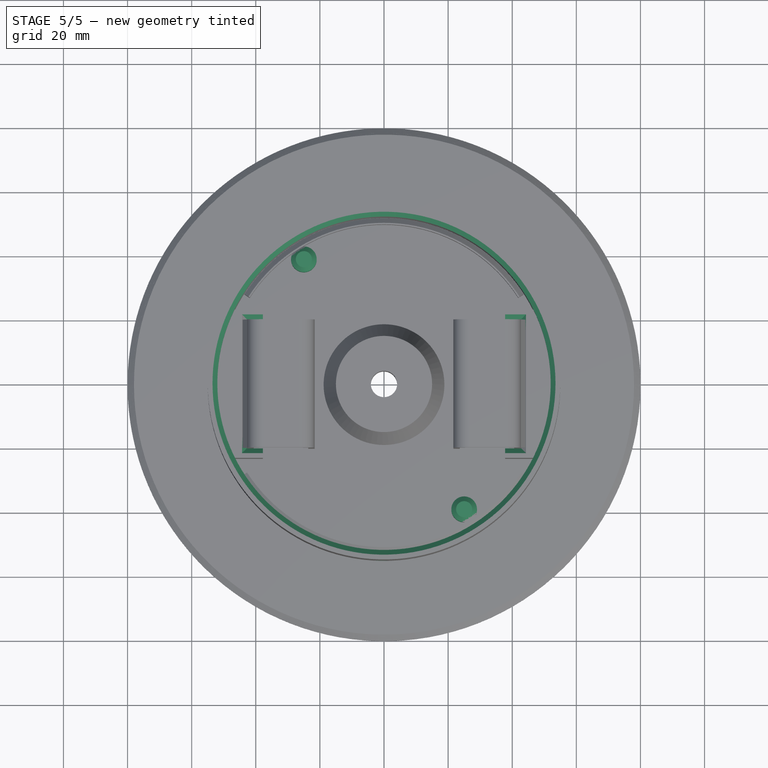
[diagram: stage 5 of 5 — top view after this stage's code; geometry added in this stage tinted green]
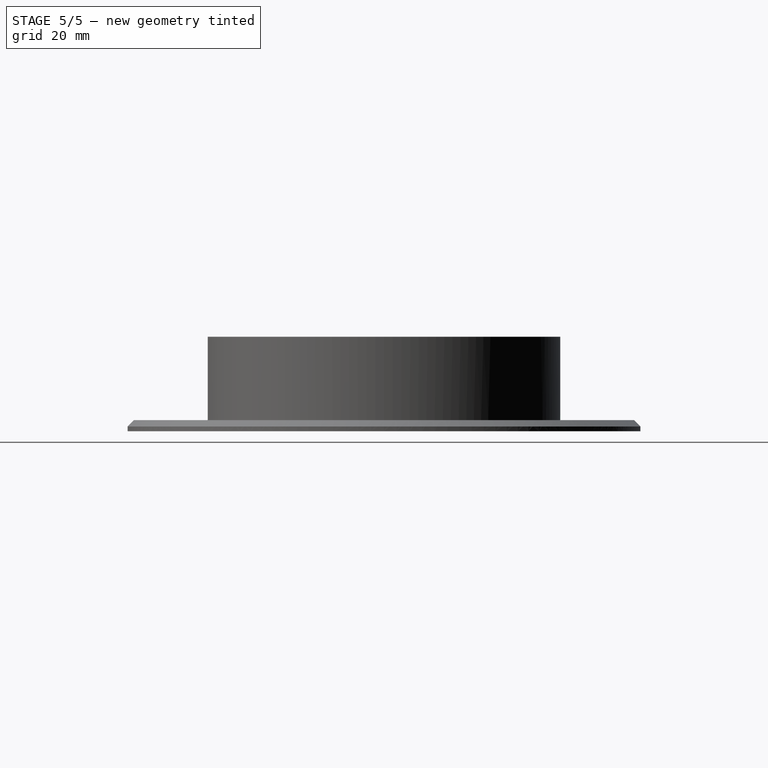
[diagram: stage 5 of 5 — right view after this stage's code; geometry added in this stage tinted green]
FEATURE [PartDesign::SubtractiveCylinder] Cylinder004
  Angle = 360
  AttacherType = Attacher::AttachEngine3D
  AttachmentOffset = pos=(6,58,-12) rot=(0.774597,-0.447214,-0.447214;1.82348rad)
  BaseFeature = -> Cylinder003
  Height = 20
  MapMode = 45
  Placement = pos=(6,58,4.5) rot=(0.774597,-0.447214,-0.447214;1.82348rad)
  Radius = 1
  Support = -> [Cylinder003]
FEATURE [PartDesign::PolarPattern] PolarPattern
  Angle = 360
  Axis = -> Z_Axis001
  BaseFeature = -> Cylinder004
  Occurrences = 2
  Originals = -> [Cylinder004]
  Placement = pos=(6,58,4.5) rot=(0.774597,-0.447214,-0.447214;1.82348rad)
FEATURE [PartDesign::AdditiveCylinder] Cylinder005
  Angle = 360
  AttacherType = Attacher::AttachEngine3D
  AttachmentOffset = pos=(-25,39,0) rot=(0,0,1;0rad)
  BaseFeature = -> PolarPattern
  Height = 12
  MapMode = 5
  Placement = pos=(-25,39,0) rot=(0,0,1;0rad)
  Radius = 4
  Support = -> [XY_Plane001]
FEATURE [PartDesign::PolarPattern] PolarPattern001
  Angle = 360
  Axis = -> Z_Axis001
  BaseFeature = -> Cylinder005
  Occurrences = 2
  Originals = -> [Cylinder005]
  Placement = pos=(-25,39,0) rot=(0,0,1;0rad)
FEATURE [PartDesign::Body] Body001  label="DrivePlateRaw"
  Group = -> [Cylinder,Sketch002,Cylinder001,Cylinder002,Sketch004,Sketch009,Pad,Mirrored,Box,Mirrored001,Cone,Cylinder003,Cylinder004,PolarPattern,Cylinder005,PolarPattern001]
  Origin = -> Origin001
  Tip = -> PolarPattern001
FEATURE [Part::Chamfer] Chamfer001  label="DrivePlate"
  Base = -> PolarPattern001
  Edges = 10 edges: [Edge1 r=2,Edge35 r=1.5,Edge57 r=1.5,Edge58 r=1.5,Edge59 r=1.5,Edge86 r=1.5,Edge87 r=1.5,Edge88 r=1.5,Edge115 r=1.5,Edge118 r=1.5]
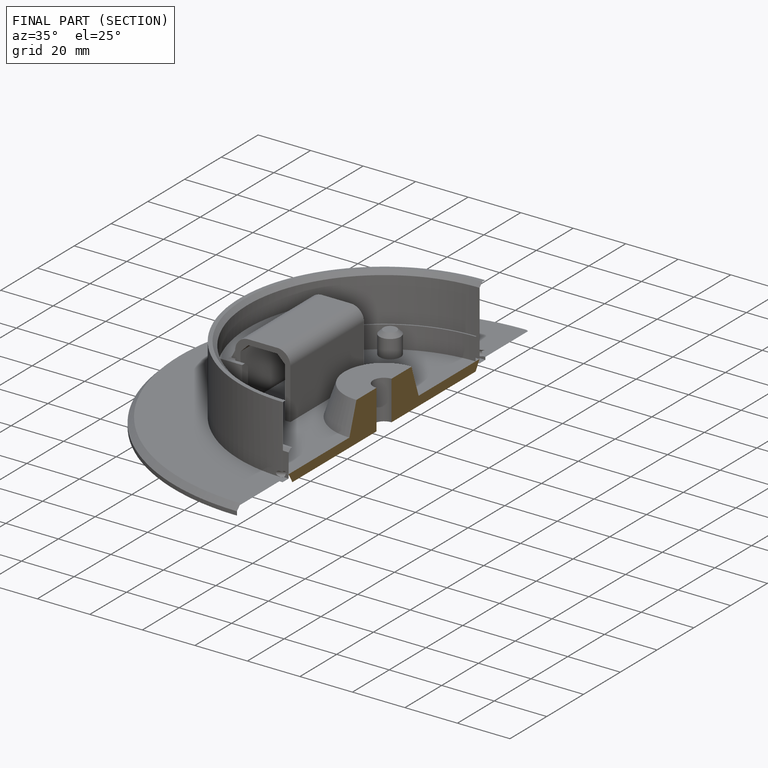
[diagram: finished part — half-section view (interior)]
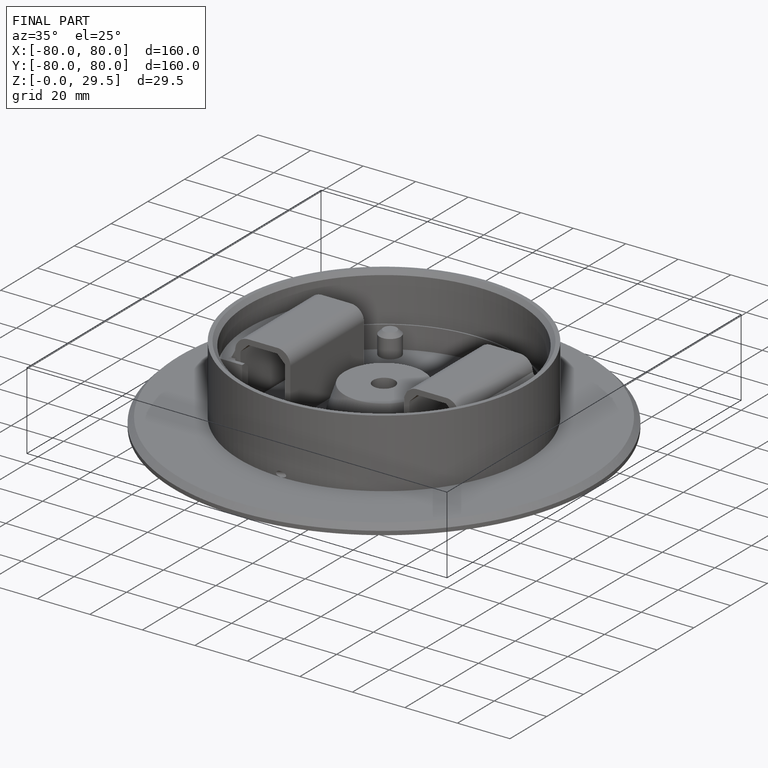
[diagram: finished part — iso view with bounding-box wireframe]
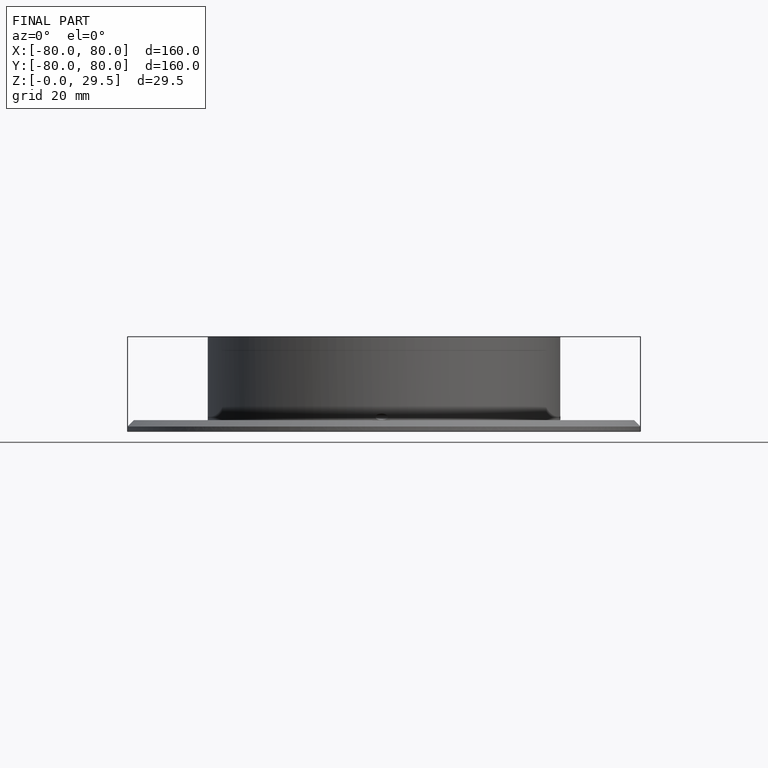
[diagram: finished part — front view with bounding-box wireframe]
